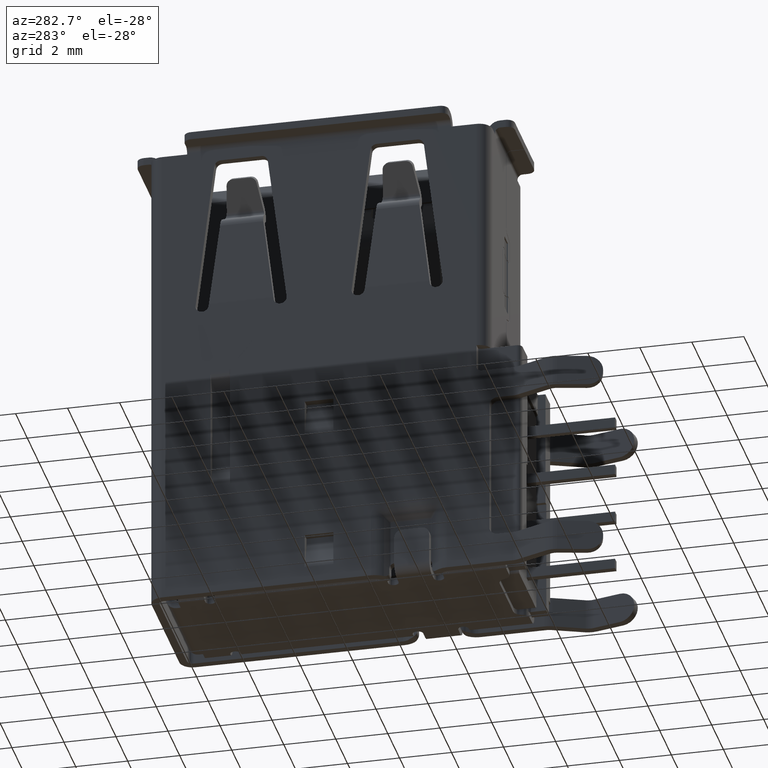
[diagram: clean part render]
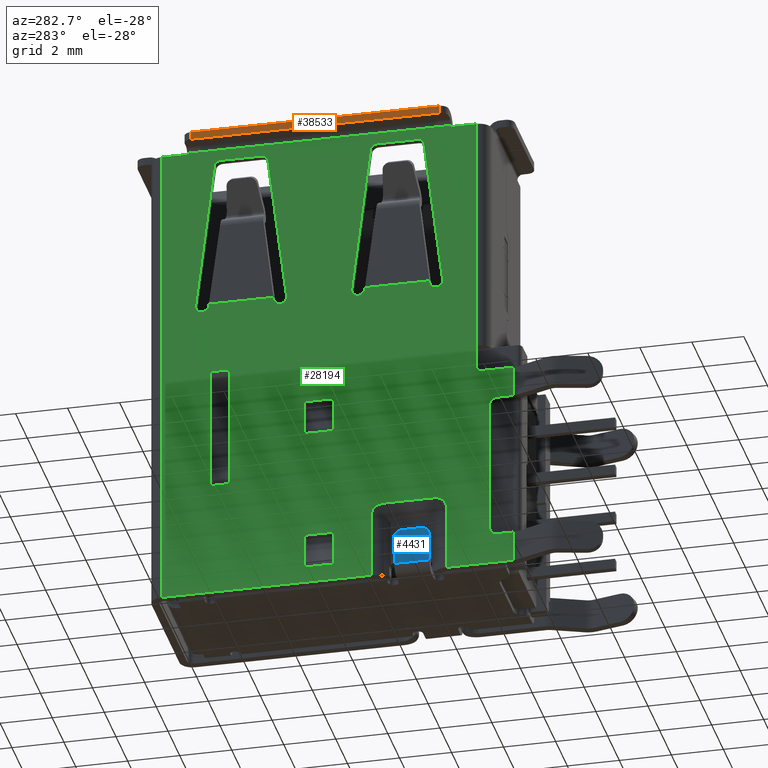
[diagram: same view with three faces highlighted in distinct colors, each labeled with its STEP entity id]
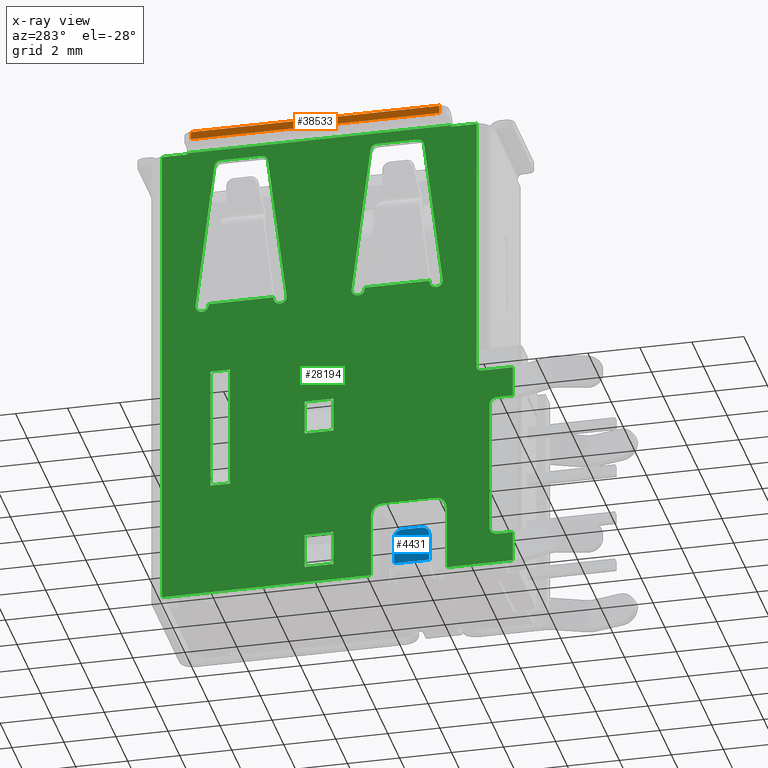
[diagram: x-ray of the same camera — body ghosted, the three highlighted faces saturated]
A machine part, auxiliary view with three faces highlighted in distinct colors.
The next image is the same camera in x-ray (body ghosted, the three faces saturated) — at least one of them is partly hidden behind the body in this view.
Their STEP definitions:

[orange] entity #38533 — the highlighted planar face has unit normal (1, 0, -0).
#261 = LINE ( 'NONE', #18255, #5900 ) ;
#284 = ORIENTED_EDGE ( 'NONE', *, *, #10435, .F. ) ;
#3670 = CARTESIAN_POINT ( 'NONE',  ( -19.10000000000000142, 0.0000000000000000000, -6.419999999999999929 ) ) ;
#4571 = CARTESIAN_POINT ( 'NONE',  ( -18.95000000002000107, 4.775000000099375974, -6.419999999999999929 ) ) ;
#5900 = VECTOR ( 'NONE', #11056, 1000.000000000000000 ) ;
#6127 = ORIENTED_EDGE ( 'NONE', *, *, #21865, .F. ) ;
#7272 = ORIENTED_EDGE ( 'NONE', *, *, #26380, .F. ) ;
#8873 = CARTESIAN_POINT ( 'NONE',  ( -19.25000000000000000, 4.775000000000000355, -6.419999999999999929 ) ) ;
#10435 = EDGE_CURVE ( 'NONE', #14382, #13663, #24665, .T. ) ;
#10683 = CARTESIAN_POINT ( 'NONE',  ( -19.25000000000000000, 0.0000000000000000000, -6.419999999999999929 ) ) ;
#11056 = DIRECTION ( 'NONE',  ( 1.000000000000000000, 0.0000000000000000000, -0.0000000000000000000 ) ) ;
#13663 = VERTEX_POINT ( 'NONE', #4571 ) ;
#14382 = VERTEX_POINT ( 'NONE', #28719 ) ;
#14465 = FACE_OUTER_BOUND ( 'NONE', #22407, .T. ) ;
#16125 = AXIS2_PLACEMENT_3D ( 'NONE', #3670, #46402, #46642 ) ;
#16319 = LINE ( 'NONE', #45350, #17077 ) ;
#17077 = VECTOR ( 'NONE', #34336, 1000.000000000000000 ) ;
#18255 = CARTESIAN_POINT ( 'NONE',  ( -19.10000000000000142, -4.775000000416500079, -6.419999999999999929 ) ) ;
#18910 = DIRECTION ( 'NONE',  ( -0.0000000000000000000, 1.000000000000000000, 0.0000000000000000000 ) ) ;
#19651 = VERTEX_POINT ( 'NONE', #8873 ) ;
#21042 = VECTOR ( 'NONE', #44008, 1000.000000000000000 ) ;
#21865 = EDGE_CURVE ( 'NONE', #24597, #14382, #261, .T. ) ;
#22407 = EDGE_LOOP ( 'NONE', ( #284, #6127, #37545, #7272 ) ) ;
#24597 = VERTEX_POINT ( 'NONE', #43838 ) ;
#24665 = LINE ( 'NONE', #26337, #26357 ) ;
#26337 = CARTESIAN_POINT ( 'NONE',  ( -18.94999999999999929, 0.0000000000000000000, -6.419999999999999929 ) ) ;
#26357 = VECTOR ( 'NONE', #18910, 1000.000000000000000 ) ;
#26380 = EDGE_CURVE ( 'NONE', #13663, #19651, #16319, .T. ) ;
#28362 = EDGE_CURVE ( 'NONE', #24597, #19651, #46926, .T. ) ;
#28719 = CARTESIAN_POINT ( 'NONE',  ( -18.94999999999999929, -4.775000000312374482, -6.419999999999999929 ) ) ;
#29102 = PLANE ( 'NONE',  #16125 ) ;
#34336 = DIRECTION ( 'NONE',  ( -1.000000000000000000, -0.0000000000000000000, -0.0000000000000000000 ) ) ;
#37545 = ORIENTED_EDGE ( 'NONE', *, *, #28362, .T. ) ;
#38533 = ADVANCED_FACE ( 'NONE', ( #14465 ), #29102, .F. ) ;
#43838 = CARTESIAN_POINT ( 'NONE',  ( -19.25000000000000000, -4.775000000208249773, -6.419999999999999929 ) ) ;
#44008 = DIRECTION ( 'NONE',  ( 0.0000000000000000000, 1.000000000000000000, 0.0000000000000000000 ) ) ;
#45350 = CARTESIAN_POINT ( 'NONE',  ( -19.28378473656000125, 4.775000000000000355, -6.419999999999999929 ) ) ;
#46402 = DIRECTION ( 'NONE',  ( 0.0000000000000000000, 0.0000000000000000000, 1.000000000000000000 ) ) ;
#46642 = DIRECTION ( 'NONE',  ( 1.000000000000000000, 0.0000000000000000000, -0.0000000000000000000 ) ) ;
#46926 = LINE ( 'NONE', #10683, #21042 ) ;

[blue] entity #4431 — the highlighted planar face has unit normal (1, 0, -0).
#312 = EDGE_CURVE ( 'NONE', #39057, #9830, #18126, .T. ) ;
#522 = CARTESIAN_POINT ( 'NONE',  ( -0.7500000000001001421, -4.235000000000000320, -5.720000000000001528 ) ) ;
#849 = VERTEX_POINT ( 'NONE', #19564 ) ;
#1146 = VECTOR ( 'NONE', #4213, 1000.000000000000000 ) ;
#1430 = PLANE ( 'NONE',  #24405 ) ;
#2639 = CARTESIAN_POINT ( 'NONE',  ( -1.800000000000000044, -3.935000000043499924, -5.720000000000001528 ) ) ;
#2699 = CARTESIAN_POINT ( 'NONE',  ( -1.578539816370161386, -2.885000000017410304, -5.720000000000002416 ) ) ;
#4213 = DIRECTION ( 'NONE',  ( -1.000000000000000000, -0.0000000000000000000, 0.0000000000000000000 ) ) ;
#4431 = ADVANCED_FACE ( 'NONE', ( #19669 ), #1430, .F. ) ;
#4559 = CARTESIAN_POINT ( 'NONE',  ( -1.100000000000000089, -3.560000000000000053, -5.720000000000001528 ) ) ;
#5572 = ORIENTED_EDGE ( 'NONE', *, *, #16484, .F. ) ;
#6391 = EDGE_CURVE ( 'NONE', #39420, #39057, #24331, .T. ) ;
#7250 = VECTOR ( 'NONE', #20984, 1000.000000000000000 ) ;
#7399 = CARTESIAN_POINT ( 'NONE',  ( -1.800000000000000044, -3.184999999850000485, -5.720000000000001528 ) ) ;
#7918 = CARTESIAN_POINT ( 'NONE',  ( -0.4000000000833499048, -2.884999999999999787, -5.720000000000001528 ) ) ;
#8254 = B_SPLINE_CURVE_WITH_KNOTS ( 'NONE', 3,
 ( #43212, #2699, #28352, #20909, #35568, #35326 ),
 .UNSPECIFIED., .F., .F.,
 ( 4, 2, 4 ),
 ( 0.0000000000000000000, 0.5000000000000000000, 1.000000000000000000 ),
 .UNSPECIFIED. ) ;
#9552 = DIRECTION ( 'NONE',  ( 0.0000000000000000000, 1.000000000000000000, 0.0000000000000000000 ) ) ;
#9830 = VERTEX_POINT ( 'NONE', #20656 ) ;
#10704 = CARTESIAN_POINT ( 'NONE',  ( -0.7500000000001001421, -2.884999999999999787, -5.720000000000001528 ) ) ;
#10725 = ORIENTED_EDGE ( 'NONE', *, *, #312, .F. ) ;
#11525 = EDGE_CURVE ( 'NONE', #19678, #11719, #37080, .T. ) ;
#11719 = VERTEX_POINT ( 'NONE', #16182 ) ;
#13444 = EDGE_CURVE ( 'NONE', #11719, #39420, #8254, .T. ) ;
#15464 = VECTOR ( 'NONE', #45947, 1000.000000000000000 ) ;
#16071 = ORIENTED_EDGE ( 'NONE', *, *, #13444, .F. ) ;
#16182 = CARTESIAN_POINT ( 'NONE',  ( -1.500000000066499917, -2.885000000000000231, -5.720000000000001528 ) ) ;
#16484 = EDGE_CURVE ( 'NONE', #849, #19678, #38809, .T. ) ;
#17149 = CARTESIAN_POINT ( 'NONE',  ( -1.800000000000000266, -3.560000000000000053, -5.720000000000001528 ) ) ;
#17266 = CARTESIAN_POINT ( 'NONE',  ( -1.767668071073049019, -4.091595997638415305, -5.720000000000001528 ) ) ;
#18126 = B_SPLINE_CURVE_WITH_KNOTS ( 'NONE', 3,
 ( #2639, #32378, #17266, #21328, #39559, #42921 ),
 .UNSPECIFIED., .F., .F.,
 ( 4, 2, 4 ),
 ( 0.0000000000000000000, 0.5000000000000000000, 1.000000000000000000 ),
 .UNSPECIFIED. ) ;
#19197 = DIRECTION ( 'NONE',  ( 1.000000000000000000, 0.0000000000000000000, -0.0000000000000000000 ) ) ;
#19564 = CARTESIAN_POINT ( 'NONE',  ( -0.4000000000833498492, -4.235000000958500266, -5.720000000000000639 ) ) ;
#19669 = FACE_OUTER_BOUND ( 'NONE', #39025, .T. ) ;
#19678 = VERTEX_POINT ( 'NONE', #7918 ) ;
#20656 = CARTESIAN_POINT ( 'NONE',  ( -1.500000000046000093, -4.235000000000000320, -5.720000000000001528 ) ) ;
#20909 = CARTESIAN_POINT ( 'NONE',  ( -1.767668071035635613, -3.028404002308250575, -5.720000000000000639 ) ) ;
#20984 = DIRECTION ( 'NONE',  ( -1.000000000000000000, -0.0000000000000000000, 0.0000000000000000000 ) ) ;
#21328 = CARTESIAN_POINT ( 'NONE',  ( -1.656595997640647466, -4.202668071071743228, -5.720000000000000639 ) ) ;
#21600 = ORIENTED_EDGE ( 'NONE', *, *, #11525, .F. ) ;
#21827 = CARTESIAN_POINT ( 'NONE',  ( -1.800000000000000044, -3.935000000043499924, -5.720000000000001528 ) ) ;
#24127 = ORIENTED_EDGE ( 'NONE', *, *, #29960, .T. ) ;
#24331 = LINE ( 'NONE', #17149, #15464 ) ;
#24405 = AXIS2_PLACEMENT_3D ( 'NONE', #4559, #45331, #19197 ) ;
#28352 = CARTESIAN_POINT ( 'NONE',  ( -1.656595997617249072, -2.917331928920779305, -5.720000000000001528 ) ) ;
#29960 = EDGE_CURVE ( 'NONE', #849, #9830, #44181, .T. ) ;
#32378 = CARTESIAN_POINT ( 'NONE',  ( -1.799999999988611599, -4.013539816368328239, -5.720000000000002416 ) ) ;
#35326 = CARTESIAN_POINT ( 'NONE',  ( -1.800000000000000044, -3.184999999850000485, -5.720000000000001528 ) ) ;
#35568 = CARTESIAN_POINT ( 'NONE',  ( -1.799999999960729902, -3.106460183546339238, -5.720000000000001528 ) ) ;
#35977 = ORIENTED_EDGE ( 'NONE', *, *, #6391, .F. ) ;
#37080 = LINE ( 'NONE', #10704, #1146 ) ;
#38809 = LINE ( 'NONE', #46015, #42394 ) ;
#39025 = EDGE_LOOP ( 'NONE', ( #5572, #24127, #10725, #35977, #16071, #21600 ) ) ;
#39057 = VERTEX_POINT ( 'NONE', #21827 ) ;
#39420 = VERTEX_POINT ( 'NONE', #7399 ) ;
#39559 = CARTESIAN_POINT ( 'NONE',  ( -1.578539816370828408, -4.234999999987956620, -5.720000000000001528 ) ) ;
#42394 = VECTOR ( 'NONE', #9552, 1000.000000000000000 ) ;
#42921 = CARTESIAN_POINT ( 'NONE',  ( -1.500000000046000093, -4.235000000000000320, -5.720000000000001528 ) ) ;
#43212 = CARTESIAN_POINT ( 'NONE',  ( -1.500000000066499917, -2.885000000000000231, -5.720000000000001528 ) ) ;
#44181 = LINE ( 'NONE', #522, #7250 ) ;
#45331 = DIRECTION ( 'NONE',  ( 0.0000000000000000000, 0.0000000000000000000, 1.000000000000000000 ) ) ;
#45947 = DIRECTION ( 'NONE',  ( 0.0000000000000000000, -1.000000000000000000, -0.0000000000000000000 ) ) ;
#46015 = CARTESIAN_POINT ( 'NONE',  ( -0.4000000000833498492, -4.268784736557999615, -5.720000000000000639 ) ) ;

[green] entity #28194 — the highlighted planar face has unit normal (1, 0, -0).
#19 = LINE ( 'NONE', #44154, #46064 ) ;
#164 = VECTOR ( 'NONE', #29447, 1000.000000000000000 ) ;
#222 = VECTOR ( 'NONE', #6115, 999.9999999999998863 ) ;
#418 = ORIENTED_EDGE ( 'NONE', *, *, #6963, .F. ) ;
#419 = CIRCLE ( 'NONE', #32587, 0.2500000000000002220 ) ;
#461 = LINE ( 'NONE', #21809, #44465 ) ;
#603 = LINE ( 'NONE', #29870, #5876 ) ;
#652 = CARTESIAN_POINT ( 'NONE',  ( -9.375000000000000000, -0.6999999999999999556, -5.720000000000001528 ) ) ;
#671 = DIRECTION ( 'NONE',  ( 0.0000000000000000000, 1.000000000000000000, 0.0000000000000000000 ) ) ;
#879 = CARTESIAN_POINT ( 'NONE',  ( -2.626240485379858658, -4.891763590205164824, -5.720000000834925658 ) ) ;
#1018 = VERTEX_POINT ( 'NONE', #35809 ) ;
#1115 = CARTESIAN_POINT ( 'NONE',  ( -3.009764428509988488, -4.467805467669109021, -5.719996999306492746 ) ) ;
#1120 = EDGE_CURVE ( 'NONE', #2190, #19077, #22090, .T. ) ;
#1123 = ORIENTED_EDGE ( 'NONE', *, *, #3302, .T. ) ;
#1134 = AXIS2_PLACEMENT_3D ( 'NONE', #8212, #4377, #19016 ) ;
#1177 = AXIS2_PLACEMENT_3D ( 'NONE', #24823, #10681, #39462 ) ;
#1306 = DIRECTION ( 'NONE',  ( 0.0000000000000000000, 0.0000000000000000000, 1.000000000000000000 ) ) ;
#1353 = CARTESIAN_POINT ( 'NONE',  ( -2.829221039422565198, -4.806923902581163865, -5.720000212633206793 ) ) ;
#1453 = EDGE_CURVE ( 'NONE', #20912, #46891, #3349, .T. ) ;
#1641 = CARTESIAN_POINT ( 'NONE',  ( -12.16941621183335620, -4.251877788020988369, -5.720000000000001528 ) ) ;
#1799 = VECTOR ( 'NONE', #16535, 1000.000000000000000 ) ;
#1808 = VECTOR ( 'NONE', #22722, 1000.000000000000000 ) ;
#1889 = ORIENTED_EDGE ( 'NONE', *, *, #19966, .T. ) ;
#1898 = DIRECTION ( 'NONE',  ( 0.0000000000000000000, -1.000000000000000000, -0.0000000000000000000 ) ) ;
#1902 = CARTESIAN_POINT ( 'NONE',  ( -12.24558918872945945, -0.6999999999999999556, -5.720000000000001528 ) ) ;
#1920 = ORIENTED_EDGE ( 'NONE', *, *, #9659, .F. ) ;
#1953 = CARTESIAN_POINT ( 'NONE',  ( -7.670000000173582855, -0.5500000001875000599, -5.720000000000000639 ) ) ;
#2158 = CARTESIAN_POINT ( 'NONE',  ( -15.15558378800000305, -1.612416164999999957, -5.720000000000001528 ) ) ;
#2190 = VERTEX_POINT ( 'NONE', #42337 ) ;
#2311 = DIRECTION ( 'NONE',  ( 0.0000000000000000000, 1.000000000000000000, 0.0000000000000000000 ) ) ;
#2486 = EDGE_CURVE ( 'NONE', #38076, #24862, #4317, .T. ) ;
#2661 = CARTESIAN_POINT ( 'NONE',  ( -11.94999999999999929, 1.500000000000000000, -5.720000000000001528 ) ) ;
#2762 = CARTESIAN_POINT ( 'NONE',  ( -9.375000000000000000, -0.5500000001875000599, -5.720000000000001528 ) ) ;
#2897 = DIRECTION ( 'NONE',  ( 0.0000000000000000000, -1.000000000000000000, -0.0000000000000000000 ) ) ;
#2922 = VERTEX_POINT ( 'NONE', #31870 ) ;
#3038 = CARTESIAN_POINT ( 'NONE',  ( -9.375000000000000000, -4.905294046727499691, -5.720000000000001528 ) ) ;
#3224 = LINE ( 'NONE', #2762, #43028 ) ;
#3274 = EDGE_CURVE ( 'NONE', #10061, #24294, #27367, .T. ) ;
#3302 = EDGE_CURVE ( 'NONE', #5318, #22931, #21457, .T. ) ;
#3313 = CARTESIAN_POINT ( 'NONE',  ( -6.699999999473999601, -6.550000000000000711, -5.719999999967501303 ) ) ;
#3349 = LINE ( 'NONE', #43631, #18813 ) ;
#3404 = CARTESIAN_POINT ( 'NONE',  ( -9.375000000000000000, -6.049999999296000297, -5.720000000000001528 ) ) ;
#3433 = ORIENTED_EDGE ( 'NONE', *, *, #24546, .T. ) ;
#3434 = CARTESIAN_POINT ( 'NONE',  ( -12.24558918872545554, 1.757511367341593411, -5.720000000022722020 ) ) ;
#3555 = CARTESIAN_POINT ( 'NONE',  ( -18.30000000000000071, -2.221076753500000223, -5.720000000000001528 ) ) ;
#3710 = LINE ( 'NONE', #21935, #37030 ) ;
#3783 = ORIENTED_EDGE ( 'NONE', *, *, #10156, .F. ) ;
#3855 = LINE ( 'NONE', #43669, #27335 ) ;
#3870 = CARTESIAN_POINT ( 'NONE',  ( -6.700000000000000178, -6.850000000000001421, -5.720000000000001528 ) ) ;
#4023 = LINE ( 'NONE', #43842, #46554 ) ;
#4025 = CARTESIAN_POINT ( 'NONE',  ( -7.000000000000000000, -6.850000000000001421, -5.719999999967501303 ) ) ;
#4069 = CARTESIAN_POINT ( 'NONE',  ( -12.24558918873849223, 4.242488632059778553, -5.720000000078153235 ) ) ;
#4219 = VERTEX_POINT ( 'NONE', #31783 ) ;
#4247 = FACE_BOUND ( 'NONE', #25282, .T. ) ;
#4280 = EDGE_CURVE ( 'NONE', #43104, #34623, #10819, .T. ) ;
#4317 = CIRCLE ( 'NONE', #5062, 0.2500000000000002220 ) ;
#4377 = DIRECTION ( 'NONE',  ( 0.0000000000000000000, 0.0000000000000000000, 1.000000000000000000 ) ) ;
#4436 = VERTEX_POINT ( 'NONE', #28064 ) ;
#4596 = CARTESIAN_POINT ( 'NONE',  ( -8.199999999999999289, -8.307840758848000107, -5.719999999902499965 ) ) ;
#4719 = CARTESIAN_POINT ( 'NONE',  ( -9.367782202312000095, -0.6999999999999999556, -5.720000000000001528 ) ) ;
#4803 = DIRECTION ( 'NONE',  ( 1.000000000000000000, 0.0000000000000000000, -0.0000000000000000000 ) ) ;
#4886 = LINE ( 'NONE', #19065, #18761 ) ;
#5043 = DIRECTION ( 'NONE',  ( -1.000000000000000000, 0.0000000000000000000, 0.0000000000000000000 ) ) ;
#5062 = AXIS2_PLACEMENT_3D ( 'NONE', #27901, #5825, #31266 ) ;
#5087 = EDGE_LOOP ( 'NONE', ( #37424, #43020, #20195, #38982 ) ) ;
#5108 = EDGE_CURVE ( 'NONE', #10061, #18187, #26279, .T. ) ;
#5222 = EDGE_LOOP ( 'NONE', ( #20586, #43686, #41748, #1123, #5308, #39433, #43015, #14129, #7515, #17402, #418, #19853, #9224, #15834, #33690, #33089, #26714, #39148, #9817, #37219, #1920, #45807, #22236, #20016 ) ) ;
#5308 = ORIENTED_EDGE ( 'NONE', *, *, #40392, .T. ) ;
#5318 = VERTEX_POINT ( 'NONE', #21675 ) ;
#5352 = ORIENTED_EDGE ( 'NONE', *, *, #12327, .T. ) ;
#5408 = DIRECTION ( 'NONE',  ( 0.0000000000000000000, 0.0000000000000000000, 1.000000000000000000 ) ) ;
#5531 = LINE ( 'NONE', #24460, #30870 ) ;
#5655 = VERTEX_POINT ( 'NONE', #45162 ) ;
#5741 = CARTESIAN_POINT ( 'NONE',  ( -12.20750270050000275, 4.247183210000000209, -5.720000000000001528 ) ) ;
#5825 = DIRECTION ( 'NONE',  ( 0.0000000000000000000, 0.0000000000000000000, 1.000000000000000000 ) ) ;
#5876 = VECTOR ( 'NONE', #26263, 1000.000000000000000 ) ;
#5877 = CARTESIAN_POINT ( 'NONE',  ( -18.08058378786894949, -1.972954541983901189, -5.720000000000001528 ) ) ;
#5917 = VERTEX_POINT ( 'NONE', #40557 ) ;
#6002 = ORIENTED_EDGE ( 'NONE', *, *, #8428, .F. ) ;
#6115 = DIRECTION ( 'NONE',  ( -0.9924888467548955706, -0.1223351505787994981, 0.0000000000000000000 ) ) ;
#6253 = DIRECTION ( 'NONE',  ( 0.0000000000000000000, 1.000000000000000000, 0.0000000000000000000 ) ) ;
#6268 = DIRECTION ( 'NONE',  ( 1.000000000000000000, 0.0000000000000000000, 0.0000000000000000000 ) ) ;
#6345 = CIRCLE ( 'NONE', #33170, 0.2500000000000002220 ) ;
#6437 = EDGE_CURVE ( 'NONE', #32194, #36425, #3224, .T. ) ;
#6481 = DIRECTION ( 'NONE',  ( -1.000000000000000000, -0.0000000000000000000, 0.0000000000000000000 ) ) ;
#6518 = CIRCLE ( 'NONE', #44798, 0.2000000000000005107 ) ;
#6581 = DIRECTION ( 'NONE',  ( 0.0000000000000000000, 1.000000000000000000, 0.0000000000000000000 ) ) ;
#6842 = DIRECTION ( 'NONE',  ( 0.0000000000000000000, 0.0000000000000000000, 1.000000000000000000 ) ) ;
#6963 = EDGE_CURVE ( 'NONE', #2922, #26019, #36277, .T. ) ;
#7112 = CARTESIAN_POINT ( 'NONE',  ( -18.75000000001000089, -5.075000000000001066, -5.720000000016667308 ) ) ;
#7157 = CARTESIAN_POINT ( 'NONE',  ( -2.983724222421088257, -2.327005750426666353, -5.719999272939166879 ) ) ;
#7277 = VERTEX_POINT ( 'NONE', #39334 ) ;
#7395 = ORIENTED_EDGE ( 'NONE', *, *, #15404, .T. ) ;
#7410 = VECTOR ( 'NONE', #40181, 1000.000000000000000 ) ;
#7423 = LINE ( 'NONE', #26112, #42846 ) ;
#7515 = ORIENTED_EDGE ( 'NONE', *, *, #19309, .T. ) ;
#7544 = ORIENTED_EDGE ( 'NONE', *, *, #19260, .T. ) ;
#7631 = CARTESIAN_POINT ( 'NONE',  ( -2.649387892398371136, -2.009795545949948359, -5.720000330630352181 ) ) ;
#7712 = LINE ( 'NONE', #14204, #46034 ) ;
#7842 = CIRCLE ( 'NONE', #9385, 0.2500000000000002220 ) ;
#7848 = CARTESIAN_POINT ( 'NONE',  ( -18.69999999947999925, 6.050000000366249964, -5.720000000075000202 ) ) ;
#7851 = CARTESIAN_POINT ( 'NONE',  ( -2.891334042224050105, -4.744755123476501524, -5.720000290304047219 ) ) ;
#7872 = LINE ( 'NONE', #33560, #10983 ) ;
#7885 = DIRECTION ( 'NONE',  ( 1.000000000000000000, 0.0000000000000000000, 0.0000000000000000000 ) ) ;
#8117 = B_SPLINE_CURVE_WITH_KNOTS ( 'NONE', 3,
 ( #26071, #11924, #44308, #879, #40701, #34233, #23405, #23173, #1353, #7851, #30624, #34467, #45251, #38056, #22464, #15045, #1115, #15274 ),
 .UNSPECIFIED., .F., .F.,
 ( 4, 2, 2, 2, 2, 2, 2, 2, 4 ),
 ( 0.0000000000000000000, 0.1250000000000023037, 0.1875000000000024980, 0.2500000000000027200, 0.5000000000000021094, 0.6250000000000017764, 0.6875000000000006661, 0.7499999999999995559, 1.000000000000000000 ),
 .UNSPECIFIED. ) ;
#8212 = CARTESIAN_POINT ( 'NONE',  ( -18.05000000000000071, -3.778923246000000180, -5.720000000000001528 ) ) ;
#8249 = LINE ( 'NONE', #26709, #45192 ) ;
#8302 = ORIENTED_EDGE ( 'NONE', *, *, #20997, .T. ) ;
#8337 = CARTESIAN_POINT ( 'NONE',  ( 0.0000000000000000000, -7.418118965827999567, -5.720000000097500426 ) ) ;
#8428 = EDGE_CURVE ( 'NONE', #43834, #9191, #29101, .T. ) ;
#8514 = VERTEX_POINT ( 'NONE', #37469 ) ;
#8645 = DIRECTION ( 'NONE',  ( -0.0000000000000000000, -0.0000000000000000000, 1.000000000000000000 ) ) ;
#8837 = DIRECTION ( 'NONE',  ( 0.0000000000000000000, 0.0000000000000000000, 1.000000000000000000 ) ) ;
#9004 = DIRECTION ( 'NONE',  ( -0.0000000000000000000, 1.000000000000000000, 0.0000000000000000000 ) ) ;
#9105 = LINE ( 'NONE', #31410, #25563 ) ;
#9119 = VECTOR ( 'NONE', #40069, 1000.000000000000000 ) ;
#9128 = DIRECTION ( 'NONE',  ( 1.000000000000000000, 0.0000000000000000000, 0.0000000000000000000 ) ) ;
#9178 = VERTEX_POINT ( 'NONE', #3555 ) ;
#9191 = VERTEX_POINT ( 'NONE', #46760 ) ;
#9224 = ORIENTED_EDGE ( 'NONE', *, *, #1453, .T. ) ;
#9385 = AXIS2_PLACEMENT_3D ( 'NONE', #28207, #31571, #23641 ) ;
#9609 = VECTOR ( 'NONE', #17480, 999.9999999999998863 ) ;
#9659 = EDGE_CURVE ( 'NONE', #36642, #5917, #38962, .T. ) ;
#9817 = ORIENTED_EDGE ( 'NONE', *, *, #15846, .F. ) ;
#9831 = CARTESIAN_POINT ( 'NONE',  ( -18.69999999953778058, -5.074999999852001231, -5.720000000011111752 ) ) ;
#9858 = EDGE_LOOP ( 'NONE', ( #6002, #37073, #31763, #22665 ) ) ;
#10061 = VERTEX_POINT ( 'NONE', #23005 ) ;
#10156 = EDGE_CURVE ( 'NONE', #37979, #19077, #45566, .T. ) ;
#10224 = EDGE_CURVE ( 'NONE', #39792, #20043, #17145, .T. ) ;
#10368 = CIRCLE ( 'NONE', #1177, 0.2500000000000002220 ) ;
#10375 = DIRECTION ( 'NONE',  ( 1.000000000000000000, 0.0000000000000000000, -0.0000000000000000000 ) ) ;
#10429 = CARTESIAN_POINT ( 'NONE',  ( -12.20750270050000275, -1.752816790000000013, -5.720000000000001528 ) ) ;
#10681 = DIRECTION ( 'NONE',  ( 0.0000000000000000000, 0.0000000000000000000, 1.000000000000000000 ) ) ;
#10748 = CIRCLE ( 'NONE', #29141, 0.2999999999999999334 ) ;
#10819 = LINE ( 'NONE', #25436, #9119 ) ;
#10851 = VECTOR ( 'NONE', #6253, 1000.000000000000000 ) ;
#10983 = VECTOR ( 'NONE', #671, 1000.000000000000000 ) ;
#10990 = CARTESIAN_POINT ( 'NONE',  ( -3.010026560390872685, -2.476859280948267017, -5.719998152017241821 ) ) ;
#11012 = ORIENTED_EDGE ( 'NONE', *, *, #42704, .T. ) ;
#11220 = VERTEX_POINT ( 'NONE', #4025 ) ;
#11271 = ORIENTED_EDGE ( 'NONE', *, *, #26174, .T. ) ;
#11462 = CARTESIAN_POINT ( 'NONE',  ( -2.483490800518292740, -1.994706104720297635, -5.719999836529260584 ) ) ;
#11633 = CARTESIAN_POINT ( 'NONE',  ( -4.532217800088499615, 3.425000000000000711, -5.719999999983874872 ) ) ;
#11830 = CARTESIAN_POINT ( 'NONE',  ( -18.08058378788899745, 1.972954542163880554, -5.720000000000001528 ) ) ;
#11893 = CARTESIAN_POINT ( 'NONE',  ( -15.15558378800000305, -4.387583835000000043, -5.720000000000001528 ) ) ;
#11924 = CARTESIAN_POINT ( 'NONE',  ( -2.528142999107383382, -4.905025498295765729, -5.719997887356934818 ) ) ;
#12041 = VERTEX_POINT ( 'NONE', #11830 ) ;
#12327 = EDGE_CURVE ( 'NONE', #27770, #38963, #19, .T. ) ;
#12424 = EDGE_LOOP ( 'NONE', ( #14033, #7395, #8302, #33307, #13376, #7544, #25811, #20368, #46228, #5352, #28016, #17738 ) ) ;
#12657 = VECTOR ( 'NONE', #29570, 1000.000000000000000 ) ;
#13297 = EDGE_CURVE ( 'NONE', #21392, #9191, #41324, .T. ) ;
#13376 = ORIENTED_EDGE ( 'NONE', *, *, #41840, .F. ) ;
#13416 = DIRECTION ( 'NONE',  ( 1.000000000000000000, 0.0000000000000000000, 0.0000000000000000000 ) ) ;
#13474 = CARTESIAN_POINT ( 'NONE',  ( -18.30000000000000071, 2.221076754157999655, -5.720000000000001528 ) ) ;
#13551 = CARTESIAN_POINT ( 'NONE',  ( -3.010293977912276819, -0.6999999999999999556, -5.720000000000001528 ) ) ;
#13664 = DIRECTION ( 'NONE',  ( -0.9924888466487681304, -0.1223351514397961054, 0.0000000000000000000 ) ) ;
#13936 = CARTESIAN_POINT ( 'NONE',  ( -8.400000000000000355, -6.250000000000000000, -5.719999999869999741 ) ) ;
#14033 = ORIENTED_EDGE ( 'NONE', *, *, #10224, .T. ) ;
#14083 = EDGE_CURVE ( 'NONE', #41862, #2190, #41505, .T. ) ;
#14129 = ORIENTED_EDGE ( 'NONE', *, *, #29020, .T. ) ;
#14204 = CARTESIAN_POINT ( 'NONE',  ( -15.15558378800000305, 1.612416164999999957, -5.720000000000001528 ) ) ;
#14322 = DIRECTION ( 'NONE',  ( 0.0000000000000000000, -1.000000000000000000, -0.0000000000000000000 ) ) ;
#14352 = CARTESIAN_POINT ( 'NONE',  ( -2.770776561456284259, -2.059702430755427915, -5.720000100243324503 ) ) ;
#14643 = LINE ( 'NONE', #22785, #35114 ) ;
#14661 = CARTESIAN_POINT ( 'NONE',  ( -12.20750270050000275, 1.752816790000000013, -5.720000000000001528 ) ) ;
#14799 = CARTESIAN_POINT ( 'NONE',  ( -9.375000000000000000, -7.449999999831999453, -5.720000000000001528 ) ) ;
#14819 = CARTESIAN_POINT ( 'NONE',  ( -2.992814823740111319, -2.360830211522695343, -5.719999509023446116 ) ) ;
#14924 = CARTESIAN_POINT ( 'NONE',  ( -9.375000000000000000, -0.5500000001875000599, -5.720000000000001528 ) ) ;
#15045 = CARTESIAN_POINT ( 'NONE',  ( -2.995209144552261282, -4.544379018737459752, -5.720000439531603753 ) ) ;
#15053 = CARTESIAN_POINT ( 'NONE',  ( -1.199999999999999956, -6.850000000510250153, -5.719999999902499965 ) ) ;
#15140 = VERTEX_POINT ( 'NONE', #5877 ) ;
#15144 = DIRECTION ( 'NONE',  ( -1.000000000000000000, 0.0000000000000000000, 0.0000000000000000000 ) ) ;
#15195 = DIRECTION ( 'NONE',  ( 0.0000000000000000000, 0.0000000000000000000, 1.000000000000000000 ) ) ;
#15214 = EDGE_CURVE ( 'NONE', #39792, #24777, #38969, .T. ) ;
#15274 = CARTESIAN_POINT ( 'NONE',  ( -3.010294005147692964, -4.378490242360430607, -5.719999885261334960 ) ) ;
#15365 = DIRECTION ( 'NONE',  ( -0.9924888467548955706, 0.1223351505787994981, 0.0000000000000000000 ) ) ;
#15378 = CARTESIAN_POINT ( 'NONE',  ( -4.532217799793900603, 4.170819803917606983, -5.715819803851568182 ) ) ;
#15404 = EDGE_CURVE ( 'NONE', #20043, #46358, #6345, .T. ) ;
#15649 = VECTOR ( 'NONE', #26260, 1000.000000000000000 ) ;
#15749 = PLANE ( 'NONE',  #20299 ) ;
#15834 = ORIENTED_EDGE ( 'NONE', *, *, #44160, .F. ) ;
#15846 = EDGE_CURVE ( 'NONE', #20170, #25134, #18264, .T. ) ;
#15896 = CARTESIAN_POINT ( 'NONE',  ( -6.319016280999999680, 0.5500000000000000444, -5.719999999982444017 ) ) ;
#16483 = CARTESIAN_POINT ( 'NONE',  ( -6.319016281421500736, 0.5500000000000000444, -5.719999999991222772 ) ) ;
#16535 = DIRECTION ( 'NONE',  ( 0.0000000000000000000, -1.000000000000000000, -0.0000000000000000000 ) ) ;
#16598 = EDGE_CURVE ( 'NONE', #43719, #32194, #42869, .T. ) ;
#17145 = CIRCLE ( 'NONE', #47027, 0.2500000000000002220 ) ;
#17231 = EDGE_CURVE ( 'NONE', #21392, #31398, #5531, .T. ) ;
#17257 = LINE ( 'NONE', #2158, #38012 ) ;
#17373 = ORIENTED_EDGE ( 'NONE', *, *, #34961, .T. ) ;
#17402 = ORIENTED_EDGE ( 'NONE', *, *, #25363, .T. ) ;
#17480 = DIRECTION ( 'NONE',  ( -0.9924888467548955706, -0.1223351505787994981, 0.0000000000000000000 ) ) ;
#17666 = DIRECTION ( 'NONE',  ( -1.000000000000000000, -0.0000000000000000000, 0.0000000000000000000 ) ) ;
#17738 = ORIENTED_EDGE ( 'NONE', *, *, #15214, .F. ) ;
#17746 = DIRECTION ( 'NONE',  ( 0.0000000000000000000, -1.000000000000000000, -0.0000000000000000000 ) ) ;
#17867 = CARTESIAN_POINT ( 'NONE',  ( -12.19999999999999929, -4.500000000000001776, -5.720000000000001528 ) ) ;
#18022 = DIRECTION ( 'NONE',  ( -0.9924888467548955706, 0.1223351505787994981, 0.0000000000000000000 ) ) ;
#18070 = EDGE_CURVE ( 'NONE', #43719, #22987, #3710, .T. ) ;
#18096 = DIRECTION ( 'NONE',  ( -1.000000000000000000, -0.0000000000000000000, 0.0000000000000000000 ) ) ;
#18187 = VERTEX_POINT ( 'NONE', #29622 ) ;
#18264 = LINE ( 'NONE', #32907, #20168 ) ;
#18336 = DIRECTION ( 'NONE',  ( -1.000000000000000000, -0.0000000000000000000, 0.0000000000000000000 ) ) ;
#18418 = CARTESIAN_POINT ( 'NONE',  ( -2.825844646164011653, -2.093885686035750648, -5.719999761215622591 ) ) ;
#18465 = VECTOR ( 'NONE', #44935, 1000.000000000000000 ) ;
#18524 = LINE ( 'NONE', #14924, #26491 ) ;
#18607 = DIRECTION ( 'NONE',  ( -0.9924888466487681304, 0.1223351514397961054, 0.0000000000000000000 ) ) ;
#18656 = LINE ( 'NONE', #8337, #1808 ) ;
#18657 = CARTESIAN_POINT ( 'NONE',  ( -3.010293997049753756, -2.521509374996288688, -5.719999796443081763 ) ) ;
#18761 = VECTOR ( 'NONE', #26009, 1000.000000000000000 ) ;
#18789 = EDGE_CURVE ( 'NONE', #43307, #5655, #26015, .T. ) ;
#18813 = VECTOR ( 'NONE', #6481, 1000.000000000000000 ) ;
#18889 = FACE_BOUND ( 'NONE', #12424, .T. ) ;
#18938 = EDGE_CURVE ( 'NONE', #24294, #27770, #25613, .T. ) ;
#19016 = DIRECTION ( 'NONE',  ( 1.000000000000000000, 0.0000000000000000000, 0.0000000000000000000 ) ) ;
#19065 = CARTESIAN_POINT ( 'NONE',  ( -4.532217800856000345, -0.6999999999999999556, -5.720000000000001528 ) ) ;
#19077 = VERTEX_POINT ( 'NONE', #3434 ) ;
#19260 = EDGE_CURVE ( 'NONE', #8514, #18187, #21813, .T. ) ;
#19309 = EDGE_CURVE ( 'NONE', #1018, #44178, #6518, .T. ) ;
#19474 = CARTESIAN_POINT ( 'NONE',  ( -0.6490162814216243747, 0.5500000000000000444, -5.719999999995804885 ) ) ;
#19680 = EDGE_CURVE ( 'NONE', #23568, #37979, #20127, .T. ) ;
#19853 = ORIENTED_EDGE ( 'NONE', *, *, #32157, .T. ) ;
#19889 = VERTEX_POINT ( 'NONE', #32360 ) ;
#19966 = EDGE_CURVE ( 'NONE', #7277, #41862, #419, .T. ) ;
#20016 = ORIENTED_EDGE ( 'NONE', *, *, #44389, .F. ) ;
#20043 = VERTEX_POINT ( 'NONE', #42305 ) ;
#20127 = LINE ( 'NONE', #5741, #9609 ) ;
#20168 = VECTOR ( 'NONE', #4803, 1000.000000000000000 ) ;
#20170 = VERTEX_POINT ( 'NONE', #31772 ) ;
#20195 = ORIENTED_EDGE ( 'NONE', *, *, #18789, .F. ) ;
#20299 = AXIS2_PLACEMENT_3D ( 'NONE', #652, #30400, #29921 ) ;
#20368 = ORIENTED_EDGE ( 'NONE', *, *, #3274, .T. ) ;
#20486 = CARTESIAN_POINT ( 'NONE',  ( -12.16941621177538480, 4.251877788028134653, -5.720000000000001528 ) ) ;
#20586 = ORIENTED_EDGE ( 'NONE', *, *, #23235, .F. ) ;
#20912 = VERTEX_POINT ( 'NONE', #9831 ) ;
#20997 = EDGE_CURVE ( 'NONE', #46358, #15140, #17257, .T. ) ;
#21113 = CARTESIAN_POINT ( 'NONE',  ( -18.30000000000000071, -3.000000000000000000, -5.720000000000001528 ) ) ;
#21282 = CARTESIAN_POINT ( 'NONE',  ( -0.6490162818432488878, -0.6999999999999999556, -5.720000000000001528 ) ) ;
#21392 = VERTEX_POINT ( 'NONE', #16483 ) ;
#21457 = LINE ( 'NONE', #46686, #35056 ) ;
#21630 = EDGE_LOOP ( 'NONE', ( #11012, #28173, #3433, #17373, #26746, #11271, #35139, #1889, #38833, #41566, #3783, #43498 ) ) ;
#21665 = CARTESIAN_POINT ( 'NONE',  ( -12.23058378790402223, 4.748122211834322925, -5.720000000000001528 ) ) ;
#21675 = CARTESIAN_POINT ( 'NONE',  ( -1.500000000000000000, -6.550000000000000711, -5.719999999902499965 ) ) ;
#21749 = EDGE_CURVE ( 'NONE', #4219, #22155, #3855, .T. ) ;
#21809 = CARTESIAN_POINT ( 'NONE',  ( -12.24558918863470502, -0.6999999999999999556, -5.720000000000001528 ) ) ;
#21813 = CIRCLE ( 'NONE', #1134, 0.2500000000000002220 ) ;
#21885 = CARTESIAN_POINT ( 'NONE',  ( -7.669999999999999929, 0.0000000000000000000, -5.720000000000001528 ) ) ;
#21935 = CARTESIAN_POINT ( 'NONE',  ( -0.6490162809999999727, 0.5500000000000000444, -5.719999999991608242 ) ) ;
#22014 = CARTESIAN_POINT ( 'NONE',  ( -2.740705658355541363, -2.044832440027258169, -5.719999762915230157 ) ) ;
#22090 = LINE ( 'NONE', #14661, #25645 ) ;
#22155 = VERTEX_POINT ( 'NONE', #15053 ) ;
#22236 = ORIENTED_EDGE ( 'NONE', *, *, #47250, .F. ) ;
#22276 = CARTESIAN_POINT ( 'NONE',  ( -5.030698080332740574E-14, 6.050000000366249964, -5.720000000000001528 ) ) ;
#22296 = CARTESIAN_POINT ( 'NONE',  ( -11.94999999999999929, -4.500000000000001776, -5.720000000000001528 ) ) ;
#22464 = CARTESIAN_POINT ( 'NONE',  ( -2.967485916217831310, -4.618504669040588873, -5.719999881868446323 ) ) ;
#22527 = AXIS2_PLACEMENT_3D ( 'NONE', #38000, #38236, #41826 ) ;
#22665 = ORIENTED_EDGE ( 'NONE', *, *, #13297, .T. ) ;
#22722 = DIRECTION ( 'NONE',  ( 0.0000000000000000000, 1.000000000000000000, 0.0000000000000000000 ) ) ;
#22723 = CARTESIAN_POINT ( 'NONE',  ( -2.996766435655064065, -2.378765443190479889, -5.720000077150325879 ) ) ;
#22785 = CARTESIAN_POINT ( 'NONE',  ( -8.849999999999999645, -6.049999999999999822, -5.719999999935000190 ) ) ;
#22911 = AXIS2_PLACEMENT_3D ( 'NONE', #38622, #31200, #9128 ) ;
#22931 = VERTEX_POINT ( 'NONE', #3313 ) ;
#22987 = VERTEX_POINT ( 'NONE', #33771 ) ;
#23005 = CARTESIAN_POINT ( 'NONE',  ( -12.23058378782859812, -4.748122212021182342, -5.720000000000001528 ) ) ;
#23173 = CARTESIAN_POINT ( 'NONE',  ( -2.773985823032416143, -4.843632452132132116, -5.719999650895343457 ) ) ;
#23235 = EDGE_CURVE ( 'NONE', #4219, #39073, #32770, .T. ) ;
#23319 = VECTOR ( 'NONE', #17666, 1000.000000000000000 ) ;
#23359 = CARTESIAN_POINT ( 'NONE',  ( -12.19999999999999929, 1.500000000000000000, -5.720000000000001528 ) ) ;
#23405 = CARTESIAN_POINT ( 'NONE',  ( -2.692395843228275520, -4.874133698688744687, -5.720000095499583104 ) ) ;
#23443 = DIRECTION ( 'NONE',  ( 1.000000000000000000, 0.0000000000000000000, 0.0000000000000000000 ) ) ;
#23568 = VERTEX_POINT ( 'NONE', #20486 ) ;
#23641 = DIRECTION ( 'NONE',  ( 1.000000000000000000, 0.0000000000000000000, 0.0000000000000000000 ) ) ;
#23750 = CARTESIAN_POINT ( 'NONE',  ( -9.367782201572671497, 4.170819803872481302, -5.715819803883063877 ) ) ;
#23848 = VERTEX_POINT ( 'NONE', #44429 ) ;
#24228 = LINE ( 'NONE', #21113, #10851 ) ;
#24294 = VERTEX_POINT ( 'NONE', #22296 ) ;
#24412 = CARTESIAN_POINT ( 'NONE',  ( -2.483490277623452425, -4.905294036603505603, -5.719999770713806164 ) ) ;
#24418 = CIRCLE ( 'NONE', #32893, 0.2999999999999999334 ) ;
#24460 = CARTESIAN_POINT ( 'NONE',  ( -6.319016281843001792, -0.6999999999999999556, -5.720000000000001528 ) ) ;
#24546 = EDGE_CURVE ( 'NONE', #24862, #19889, #36667, .T. ) ;
#24777 = VERTEX_POINT ( 'NONE', #28879 ) ;
#24823 = CARTESIAN_POINT ( 'NONE',  ( -18.05000000000000071, -2.221076753999999820, -5.720000000000001528 ) ) ;
#24862 = VERTEX_POINT ( 'NONE', #21665 ) ;
#25134 = VERTEX_POINT ( 'NONE', #45628 ) ;
#25140 = DIRECTION ( 'NONE',  ( -0.9924888466487681304, -0.1223351514397961054, 0.0000000000000000000 ) ) ;
#25282 = EDGE_LOOP ( 'NONE', ( #33158, #28366, #41171, #34191 ) ) ;
#25317 = VECTOR ( 'NONE', #10375, 1000.000000000000000 ) ;
#25363 = EDGE_CURVE ( 'NONE', #44178, #26019, #14643, .T. ) ;
#25436 = CARTESIAN_POINT ( 'NONE',  ( -18.97500000000000142, 5.075000000000000178, -5.720000000099999760 ) ) ;
#25563 = VECTOR ( 'NONE', #1898, 1000.000000000000000 ) ;
#25613 = CIRCLE ( 'NONE', #22527, 0.2500000000000002220 ) ;
#25645 = VECTOR ( 'NONE', #15365, 999.9999999999998863 ) ;
#25811 = ORIENTED_EDGE ( 'NONE', *, *, #5108, .F. ) ;
#25853 = CARTESIAN_POINT ( 'NONE',  ( -2.572811298400350388, -1.995238003187078002, -5.719996556770365004 ) ) ;
#25901 = CARTESIAN_POINT ( 'NONE',  ( 0.0000000000000000000, -7.450000000093750074, -5.720000000048750088 ) ) ;
#25950 = LINE ( 'NONE', #4596, #12657 ) ;
#25963 = CIRCLE ( 'NONE', #22911, 0.2500000000000002220 ) ;
#26009 = DIRECTION ( 'NONE',  ( 0.0000000000000000000, -1.000000000000000000, -0.0000000000000000000 ) ) ;
#26015 = LINE ( 'NONE', #11633, #15649 ) ;
#26019 = VERTEX_POINT ( 'NONE', #38805 ) ;
#26071 = CARTESIAN_POINT ( 'NONE',  ( -2.483490277623452425, -4.905294036603505603, -5.719999770713806164 ) ) ;
#26112 = CARTESIAN_POINT ( 'NONE',  ( -4.532217800088499615, 4.174999999999999822, -5.719999999966251636 ) ) ;
#26158 = DIRECTION ( 'NONE',  ( 0.0000000000000000000, 1.000000000000000000, 0.0000000000000000000 ) ) ;
#26174 = EDGE_CURVE ( 'NONE', #44974, #12041, #27044, .T. ) ;
#26260 = DIRECTION ( 'NONE',  ( -1.000000000000000000, -0.0000000000000000000, 0.0000000000000000000 ) ) ;
#26263 = DIRECTION ( 'NONE',  ( 0.0000000000000000000, 1.000000000000000000, 0.0000000000000000000 ) ) ;
#26279 = LINE ( 'NONE', #11893, #42111 ) ;
#26321 = DIRECTION ( 'NONE',  ( -0.0000000000000000000, 1.000000000000000000, 0.0000000000000000000 ) ) ;
#26397 = DIRECTION ( 'NONE',  ( -1.000000000000000000, -0.0000000000000000000, 0.0000000000000000000 ) ) ;
#26491 = VECTOR ( 'NONE', #33172, 1000.000000000000000 ) ;
#26591 = VERTEX_POINT ( 'NONE', #22276 ) ;
#26709 = CARTESIAN_POINT ( 'NONE',  ( -9.375000000000000000, 6.050000000732500993, -5.720000000000001528 ) ) ;
#26714 = ORIENTED_EDGE ( 'NONE', *, *, #40105, .F. ) ;
#26746 = ORIENTED_EDGE ( 'NONE', *, *, #33044, .F. ) ;
#26747 = DIRECTION ( 'NONE',  ( 0.0000000000000000000, 1.000000000000000000, 0.0000000000000000000 ) ) ;
#26935 = DIRECTION ( 'NONE',  ( -1.000000000000000000, -0.0000000000000000000, 0.0000000000000000000 ) ) ;
#27044 = CIRCLE ( 'NONE', #31651, 0.2500000000000002220 ) ;
#27176 = VECTOR ( 'NONE', #29152, 1000.000000000000000 ) ;
#27317 = CARTESIAN_POINT ( 'NONE',  ( -2.000000000173583370, -0.5500000002152777290, -5.719999999983000016 ) ) ;
#27335 = VECTOR ( 'NONE', #26158, 1000.000000000000000 ) ;
#27367 = CIRCLE ( 'NONE', #44210, 0.2500000000000002220 ) ;
#27770 = VERTEX_POINT ( 'NONE', #1641 ) ;
#27901 = CARTESIAN_POINT ( 'NONE',  ( -12.19999999999999929, 4.500000000000001776, -5.720000000000001528 ) ) ;
#27909 = VERTEX_POINT ( 'NONE', #24412 ) ;
#28012 = VECTOR ( 'NONE', #9004, 1000.000000000000000 ) ;
#28016 = ORIENTED_EDGE ( 'NONE', *, *, #40790, .F. ) ;
#28064 = CARTESIAN_POINT ( 'NONE',  ( -3.556183125752454544E-14, -4.905294046363749771, -5.720000000048750088 ) ) ;
#28173 = ORIENTED_EDGE ( 'NONE', *, *, #2486, .T. ) ;
#28175 = EDGE_CURVE ( 'NONE', #27909, #36642, #8117, .T. ) ;
#28194 = ADVANCED_FACE ( 'NONE', ( #30159, #4247, #41409, #44780, #18889, #33538 ), #15749, .F. ) ;
#28207 = CARTESIAN_POINT ( 'NONE',  ( -12.19999999999999929, 4.500000000000001776, -5.720000000000001528 ) ) ;
#28366 = ORIENTED_EDGE ( 'NONE', *, *, #6437, .F. ) ;
#28474 = EDGE_CURVE ( 'NONE', #36425, #22987, #36116, .T. ) ;
#28590 = EDGE_CURVE ( 'NONE', #29974, #43307, #4886, .T. ) ;
#28735 = CARTESIAN_POINT ( 'NONE',  ( -3.010294005147692964, -4.378490242360430607, -5.719999885261334960 ) ) ;
#28879 = CARTESIAN_POINT ( 'NONE',  ( -12.24558918860561896, -1.757511367737485175, -5.720000000096509218 ) ) ;
#28988 = CARTESIAN_POINT ( 'NONE',  ( -2.849758271110635288, -2.113668070038090097, -5.720000228814859256 ) ) ;
#29020 = EDGE_CURVE ( 'NONE', #33216, #1018, #25950, .T. ) ;
#29062 = CARTESIAN_POINT ( 'NONE',  ( -18.75000000001000089, 5.075000000250001086, -5.720000000075000202 ) ) ;
#29073 = DIRECTION ( 'NONE',  ( -0.9924888466487681304, 0.1223351514397961054, 0.0000000000000000000 ) ) ;
#29101 = LINE ( 'NONE', #21885, #39218 ) ;
#29141 = AXIS2_PLACEMENT_3D ( 'NONE', #3870, #32443, #15144 ) ;
#29152 = DIRECTION ( 'NONE',  ( 0.0000000000000000000, 1.000000000000000000, 0.0000000000000000000 ) ) ;
#29447 = DIRECTION ( 'NONE',  ( 1.000000000000000000, 0.0000000000000000000, -0.0000000000000000000 ) ) ;
#29570 = DIRECTION ( 'NONE',  ( 0.0000000000000000000, 1.000000000000000000, 0.0000000000000000000 ) ) ;
#29622 = CARTESIAN_POINT ( 'NONE',  ( -18.08058378766150298, -4.027045457864161015, -5.720000000000001528 ) ) ;
#29704 = CARTESIAN_POINT ( 'NONE',  ( -2.723510050860417753, -2.037517901806243703, -5.719999927226747438 ) ) ;
#29817 = CARTESIAN_POINT ( 'NONE',  ( -12.16941621171467602, -1.748122211964382888, -5.720000000000001528 ) ) ;
#29839 = DIRECTION ( 'NONE',  ( 1.000000000000000000, 0.0000000000000000000, 0.0000000000000000000 ) ) ;
#29870 = CARTESIAN_POINT ( 'NONE',  ( 0.0000000000000000000, 2.060278207000000084, -5.720000000000001528 ) ) ;
#29921 = DIRECTION ( 'NONE',  ( 1.000000000000000000, 0.0000000000000000000, -0.0000000000000000000 ) ) ;
#29974 = VERTEX_POINT ( 'NONE', #15378 ) ;
#30159 = FACE_OUTER_BOUND ( 'NONE', #5222, .T. ) ;
#30400 = DIRECTION ( 'NONE',  ( 0.0000000000000000000, 0.0000000000000000000, 1.000000000000000000 ) ) ;
#30624 = CARTESIAN_POINT ( 'NONE',  ( -2.911118741567241486, -4.720839359073917940, -5.719999765710960915 ) ) ;
#30870 = VECTOR ( 'NONE', #2897, 1000.000000000000000 ) ;
#31145 = EDGE_CURVE ( 'NONE', #15140, #9178, #10368, .T. ) ;
#31184 = CARTESIAN_POINT ( 'NONE',  ( -12.19999999999999929, -1.500000000000000000, -5.720000000000001528 ) ) ;
#31200 = DIRECTION ( 'NONE',  ( 0.0000000000000000000, 0.0000000000000000000, 1.000000000000000000 ) ) ;
#31266 = DIRECTION ( 'NONE',  ( 1.000000000000000000, 0.0000000000000000000, 0.0000000000000000000 ) ) ;
#31323 = DIRECTION ( 'NONE',  ( 1.000000000000000000, 0.0000000000000000000, 0.0000000000000000000 ) ) ;
#31398 = VERTEX_POINT ( 'NONE', #39162 ) ;
#31410 = CARTESIAN_POINT ( 'NONE',  ( -18.75000000002000178, -0.6999999999999999556, -5.720000000000001528 ) ) ;
#31571 = DIRECTION ( 'NONE',  ( 0.0000000000000000000, 0.0000000000000000000, 1.000000000000000000 ) ) ;
#31651 = AXIS2_PLACEMENT_3D ( 'NONE', #43220, #5408, #31323 ) ;
#31720 = EDGE_CURVE ( 'NONE', #31398, #43834, #18524, .T. ) ;
#31763 = ORIENTED_EDGE ( 'NONE', *, *, #17231, .F. ) ;
#31772 = CARTESIAN_POINT ( 'NONE',  ( -2.483490800518292740, -1.994706104720297635, -5.719999836529260584 ) ) ;
#31783 = CARTESIAN_POINT ( 'NONE',  ( -1.199999999999999956, -7.450000000093750074, -5.719999999967501303 ) ) ;
#31870 = CARTESIAN_POINT ( 'NONE',  ( -18.70000000000000639, -6.049999999648000504, -5.720000000000001528 ) ) ;
#32157 = EDGE_CURVE ( 'NONE', #2922, #20912, #46220, .T. ) ;
#32194 = VERTEX_POINT ( 'NONE', #46705 ) ;
#32360 = CARTESIAN_POINT ( 'NONE',  ( -18.08058378792965470, 4.027045458008615242, -5.720000000000001528 ) ) ;
#32384 = VECTOR ( 'NONE', #14322, 1000.000000000000000 ) ;
#32421 = EDGE_CURVE ( 'NONE', #25134, #26591, #603, .T. ) ;
#32443 = DIRECTION ( 'NONE',  ( -0.0000000000000000000, -0.0000000000000000000, 1.000000000000000000 ) ) ;
#32484 = CARTESIAN_POINT ( 'NONE',  ( -8.199999999479249624, -7.449999999915999815, -5.719999999926876022 ) ) ;
#32525 = CARTESIAN_POINT ( 'NONE',  ( -2.000000000000000000, 0.0000000000000000000, -5.719999999976000282 ) ) ;
#32587 = AXIS2_PLACEMENT_3D ( 'NONE', #23359, #1306, #38478 ) ;
#32770 = LINE ( 'NONE', #39938, #7410 ) ;
#32832 = CARTESIAN_POINT ( 'NONE',  ( -15.15558378800000305, 4.387583835000000043, -5.720000000000001528 ) ) ;
#32893 = AXIS2_PLACEMENT_3D ( 'NONE', #41498, #8645, #5043 ) ;
#32907 = CARTESIAN_POINT ( 'NONE',  ( -9.375000000000000000, -1.994706104720671558, -5.720000000000001528 ) ) ;
#33044 = EDGE_CURVE ( 'NONE', #44974, #47301, #4023, .T. ) ;
#33089 = ORIENTED_EDGE ( 'NONE', *, *, #46244, .T. ) ;
#33158 = ORIENTED_EDGE ( 'NONE', *, *, #28474, .F. ) ;
#33170 = AXIS2_PLACEMENT_3D ( 'NONE', #43987, #15195, #29839 ) ;
#33172 = DIRECTION ( 'NONE',  ( -1.000000000000000000, -0.0000000000000000000, 0.0000000000000000000 ) ) ;
#33216 = VERTEX_POINT ( 'NONE', #32484 ) ;
#33307 = ORIENTED_EDGE ( 'NONE', *, *, #31145, .T. ) ;
#33309 = CARTESIAN_POINT ( 'NONE',  ( -2.785135498984956381, -2.067816262004585237, -5.720000152842510843 ) ) ;
#33538 = FACE_BOUND ( 'NONE', #21630, .T. ) ;
#33560 = CARTESIAN_POINT ( 'NONE',  ( -7.000000000000000000, -8.607840758930999314, -5.719999999935000190 ) ) ;
#33581 = VECTOR ( 'NONE', #25140, 1000.000000000000114 ) ;
#33690 = ORIENTED_EDGE ( 'NONE', *, *, #4280, .F. ) ;
#33771 = CARTESIAN_POINT ( 'NONE',  ( -2.000000001041500219, 0.5500000000000000444, -5.719999999986405292 ) ) ;
#34191 = ORIENTED_EDGE ( 'NONE', *, *, #18070, .T. ) ;
#34233 = CARTESIAN_POINT ( 'NONE',  ( -2.677999222572385651, -4.878720369622231878, -5.719999238143173237 ) ) ;
#34467 = CARTESIAN_POINT ( 'NONE',  ( -2.937188591498364421, -4.680128954484156445, -5.720000127742223661 ) ) ;
#34538 = DIRECTION ( 'NONE',  ( 0.0000000000000000000, 0.0000000000000000000, 1.000000000000000000 ) ) ;
#34623 = VERTEX_POINT ( 'NONE', #29062 ) ;
#34961 = EDGE_CURVE ( 'NONE', #19889, #47301, #25963, .T. ) ;
#34999 = EDGE_CURVE ( 'NONE', #22155, #5318, #24418, .T. ) ;
#35056 = VECTOR ( 'NONE', #43052, 1000.000000000000000 ) ;
#35114 = VECTOR ( 'NONE', #26397, 1000.000000000000000 ) ;
#35139 = ORIENTED_EDGE ( 'NONE', *, *, #40433, .F. ) ;
#35296 = EDGE_CURVE ( 'NONE', #41808, #29974, #7423, .T. ) ;
#35424 = CARTESIAN_POINT ( 'NONE',  ( -18.70000000000000639, -5.812500000000000000, -5.720000000000001528 ) ) ;
#35539 = CARTESIAN_POINT ( 'NONE',  ( -12.24558918883065850, -4.242488632483749633, -5.720000000036879584 ) ) ;
#35809 = CARTESIAN_POINT ( 'NONE',  ( -8.199999999999999289, -6.249999999875000434, -5.719999999886249853 ) ) ;
#35881 = DIRECTION ( 'NONE',  ( 1.000000000000000000, 0.0000000000000000000, 0.0000000000000000000 ) ) ;
#36116 = LINE ( 'NONE', #32525, #27176 ) ;
#36277 = LINE ( 'NONE', #3404, #25317 ) ;
#36425 = VERTEX_POINT ( 'NONE', #27317 ) ;
#36497 = VECTOR ( 'NONE', #2311, 1000.000000000000000 ) ;
#36642 = VERTEX_POINT ( 'NONE', #28735 ) ;
#36667 = LINE ( 'NONE', #32832, #33581 ) ;
#36729 = VERTEX_POINT ( 'NONE', #7848 ) ;
#37016 = VECTOR ( 'NONE', #26321, 1000.000000000000000 ) ;
#37030 = VECTOR ( 'NONE', #18336, 1000.000000000000000 ) ;
#37073 = ORIENTED_EDGE ( 'NONE', *, *, #31720, .F. ) ;
#37078 = VECTOR ( 'NONE', #6581, 1000.000000000000000 ) ;
#37120 = CARTESIAN_POINT ( 'NONE',  ( -4.532217800472249536, 3.429180196092223021, -5.715819803909281127 ) ) ;
#37219 = ORIENTED_EDGE ( 'NONE', *, *, #39387, .F. ) ;
#37361 = LINE ( 'NONE', #4719, #37016 ) ;
#37373 = CARTESIAN_POINT ( 'NONE',  ( -2.911919306882144287, -2.175774149774545752, -5.720000335020324123 ) ) ;
#37424 = ORIENTED_EDGE ( 'NONE', *, *, #35296, .F. ) ;
#37469 = CARTESIAN_POINT ( 'NONE',  ( -18.30000000000000071, -3.778923246467000396, -5.720000000000001528 ) ) ;
#37677 = AXIS2_PLACEMENT_3D ( 'NONE', #41686, #8837, #23443 ) ;
#37979 = VERTEX_POINT ( 'NONE', #4069 ) ;
#38000 = CARTESIAN_POINT ( 'NONE',  ( -12.19999999999999929, -4.500000000000001776, -5.720000000000001528 ) ) ;
#38012 = VECTOR ( 'NONE', #13664, 1000.000000000000114 ) ;
#38056 = CARTESIAN_POINT ( 'NONE',  ( -2.960172624000455333, -4.635697661281500181, -5.719999770603648948 ) ) ;
#38076 = VERTEX_POINT ( 'NONE', #46466 ) ;
#38236 = DIRECTION ( 'NONE',  ( 0.0000000000000000000, 0.0000000000000000000, 1.000000000000000000 ) ) ;
#38353 = CARTESIAN_POINT ( 'NONE',  ( -18.69999999861333251, 5.075000000222222418, -5.720000000099999760 ) ) ;
#38478 = DIRECTION ( 'NONE',  ( 1.000000000000000000, 0.0000000000000000000, 0.0000000000000000000 ) ) ;
#38622 = CARTESIAN_POINT ( 'NONE',  ( -18.05000000000000071, 3.778923246000000180, -5.720000000000001528 ) ) ;
#38805 = CARTESIAN_POINT ( 'NONE',  ( -9.300000000000000711, -6.049999999648000504, -5.719999999967501303 ) ) ;
#38833 = ORIENTED_EDGE ( 'NONE', *, *, #14083, .T. ) ;
#38962 = LINE ( 'NONE', #13551, #28012 ) ;
#38963 = VERTEX_POINT ( 'NONE', #35539 ) ;
#38969 = LINE ( 'NONE', #10429, #222 ) ;
#38982 = ORIENTED_EDGE ( 'NONE', *, *, #28590, .F. ) ;
#39073 = VERTEX_POINT ( 'NONE', #25901 ) ;
#39114 = DIRECTION ( 'NONE',  ( 0.0000000000000000000, 0.0000000000000000000, 1.000000000000000000 ) ) ;
#39148 = ORIENTED_EDGE ( 'NONE', *, *, #32421, .F. ) ;
#39162 = CARTESIAN_POINT ( 'NONE',  ( -6.319016281421500736, -0.5500000001875000599, -5.720000000000001528 ) ) ;
#39218 = VECTOR ( 'NONE', #39647, 1000.000000000000000 ) ;
#39334 = CARTESIAN_POINT ( 'NONE',  ( -12.23058378790448408, 1.251877787988171065, -5.720000000000001528 ) ) ;
#39387 = EDGE_CURVE ( 'NONE', #5917, #20170, #45158, .T. ) ;
#39430 = CARTESIAN_POINT ( 'NONE',  ( -18.70000000000000639, 5.812500000000000000, -5.720000000099999760 ) ) ;
#39433 = ORIENTED_EDGE ( 'NONE', *, *, #45713, .F. ) ;
#39462 = DIRECTION ( 'NONE',  ( 1.000000000000000000, 0.0000000000000000000, 0.0000000000000000000 ) ) ;
#39647 = DIRECTION ( 'NONE',  ( 0.0000000000000000000, 1.000000000000000000, 0.0000000000000000000 ) ) ;
#39792 = VERTEX_POINT ( 'NONE', #29817 ) ;
#39938 = CARTESIAN_POINT ( 'NONE',  ( -9.375000000000000000, -7.450000000187499083, -5.720000000000001528 ) ) ;
#40069 = DIRECTION ( 'NONE',  ( -1.000000000000000000, -0.0000000000000000000, 0.0000000000000000000 ) ) ;
#40105 = EDGE_CURVE ( 'NONE', #26591, #36729, #8249, .T. ) ;
#40181 = DIRECTION ( 'NONE',  ( 1.000000000000000000, 0.0000000000000000000, -0.0000000000000000000 ) ) ;
#40201 = LINE ( 'NONE', #3038, #23319 ) ;
#40392 = EDGE_CURVE ( 'NONE', #22931, #11220, #10748, .T. ) ;
#40433 = EDGE_CURVE ( 'NONE', #7277, #12041, #7712, .T. ) ;
#40557 = CARTESIAN_POINT ( 'NONE',  ( -3.010293997049753756, -2.521509374996288688, -5.719999796443081763 ) ) ;
#40701 = CARTESIAN_POINT ( 'NONE',  ( -2.644174352684926621, -4.887810893354339825, -5.719999573582835950 ) ) ;
#40790 = EDGE_CURVE ( 'NONE', #24777, #38963, #461, .T. ) ;
#40959 = CARTESIAN_POINT ( 'NONE',  ( -3.006473117058812150, -2.435358191974999809, -5.719998340114485380 ) ) ;
#41171 = ORIENTED_EDGE ( 'NONE', *, *, #16598, .F. ) ;
#41324 = LINE ( 'NONE', #15896, #18465 ) ;
#41409 = FACE_BOUND ( 'NONE', #9858, .T. ) ;
#41498 = CARTESIAN_POINT ( 'NONE',  ( -1.500000000000000000, -6.850000000000001421, -5.719999999869999741 ) ) ;
#41505 = CIRCLE ( 'NONE', #37677, 0.2500000000000002220 ) ;
#41566 = ORIENTED_EDGE ( 'NONE', *, *, #1120, .T. ) ;
#41686 = CARTESIAN_POINT ( 'NONE',  ( -12.19999999999999929, 1.500000000000000000, -5.720000000000001528 ) ) ;
#41748 = ORIENTED_EDGE ( 'NONE', *, *, #34999, .T. ) ;
#41808 = VERTEX_POINT ( 'NONE', #23750 ) ;
#41826 = DIRECTION ( 'NONE',  ( 1.000000000000000000, 0.0000000000000000000, 0.0000000000000000000 ) ) ;
#41840 = EDGE_CURVE ( 'NONE', #8514, #9178, #24228, .T. ) ;
#41862 = VERTEX_POINT ( 'NONE', #2661 ) ;
#42111 = VECTOR ( 'NONE', #18607, 1000.000000000000114 ) ;
#42305 = CARTESIAN_POINT ( 'NONE',  ( -11.94999999999999929, -1.500000000000000000, -5.720000000000001528 ) ) ;
#42337 = CARTESIAN_POINT ( 'NONE',  ( -12.16941621078840718, 1.748122211850209551, -5.720000000000001528 ) ) ;
#42471 = EDGE_CURVE ( 'NONE', #33216, #23848, #43586, .T. ) ;
#42704 = EDGE_CURVE ( 'NONE', #23568, #38076, #7842, .T. ) ;
#42846 = VECTOR ( 'NONE', #7885, 1000.000000000000000 ) ;
#42869 = LINE ( 'NONE', #21282, #32384 ) ;
#43015 = ORIENTED_EDGE ( 'NONE', *, *, #42471, .F. ) ;
#43020 = ORIENTED_EDGE ( 'NONE', *, *, #43470, .F. ) ;
#43028 = VECTOR ( 'NONE', #18096, 1000.000000000000000 ) ;
#43052 = DIRECTION ( 'NONE',  ( -1.000000000000000000, -0.0000000000000000000, 0.0000000000000000000 ) ) ;
#43104 = VERTEX_POINT ( 'NONE', #38353 ) ;
#43220 = CARTESIAN_POINT ( 'NONE',  ( -18.05000000000000071, 2.221076753999999820, -5.720000000000001528 ) ) ;
#43307 = VERTEX_POINT ( 'NONE', #37120 ) ;
#43326 = CARTESIAN_POINT ( 'NONE',  ( -18.30000000000000071, 3.778923245000000541, -5.720000000000001528 ) ) ;
#43470 = EDGE_CURVE ( 'NONE', #5655, #41808, #37361, .T. ) ;
#43498 = ORIENTED_EDGE ( 'NONE', *, *, #19680, .F. ) ;
#43503 = LINE ( 'NONE', #39430, #37078 ) ;
#43586 = LINE ( 'NONE', #14799, #164 ) ;
#43601 = CARTESIAN_POINT ( 'NONE',  ( -2.979135814471598920, -2.312605138293956752, -5.720000114087918419 ) ) ;
#43631 = CARTESIAN_POINT ( 'NONE',  ( -18.97500000000000142, -5.075000000000000178, -5.720000000033333976 ) ) ;
#43669 = CARTESIAN_POINT ( 'NONE',  ( -1.199999999999999956, -8.607840758930999314, -5.719999999935000190 ) ) ;
#43686 = ORIENTED_EDGE ( 'NONE', *, *, #21749, .T. ) ;
#43719 = VERTEX_POINT ( 'NONE', #19474 ) ;
#43834 = VERTEX_POINT ( 'NONE', #1953 ) ;
#43842 = CARTESIAN_POINT ( 'NONE',  ( -18.30000000000000071, 3.000000000000000000, -5.720000000000001528 ) ) ;
#43987 = CARTESIAN_POINT ( 'NONE',  ( -12.19999999999999929, -1.500000000000000000, -5.720000000000001528 ) ) ;
#44154 = CARTESIAN_POINT ( 'NONE',  ( -12.20750270050000275, -4.247183210000000209, -5.720000000000001528 ) ) ;
#44160 = EDGE_CURVE ( 'NONE', #34623, #46891, #9105, .T. ) ;
#44178 = VERTEX_POINT ( 'NONE', #45562 ) ;
#44210 = AXIS2_PLACEMENT_3D ( 'NONE', #17867, #6842, #35881 ) ;
#44308 = CARTESIAN_POINT ( 'NONE',  ( -2.569646836272238222, -4.901470732346003167, -5.719998382345214516 ) ) ;
#44322 = CARTESIAN_POINT ( 'NONE',  ( -2.948636657392988969, -2.231022039877874175, -5.719999500532280123 ) ) ;
#44389 = EDGE_CURVE ( 'NONE', #39073, #4436, #18656, .T. ) ;
#44429 = CARTESIAN_POINT ( 'NONE',  ( -7.000000000000000000, -7.449999999915999815, -5.719999999967501303 ) ) ;
#44445 = CARTESIAN_POINT ( 'NONE',  ( -12.23058378772152111, -1.251877788143181958, -5.720000000000001528 ) ) ;
#44465 = VECTOR ( 'NONE', #17746, 1000.000000000000000 ) ;
#44780 = FACE_BOUND ( 'NONE', #5087, .T. ) ;
#44798 = AXIS2_PLACEMENT_3D ( 'NONE', #13936, #39114, #6268 ) ;
#44935 = DIRECTION ( 'NONE',  ( -1.000000000000000000, -0.0000000000000000000, 0.0000000000000000000 ) ) ;
#44974 = VERTEX_POINT ( 'NONE', #13474 ) ;
#45158 = B_SPLINE_CURVE_WITH_KNOTS ( 'NONE', 3,
 ( #18657, #10990, #40959, #22723, #14819, #7157, #43601, #44322, #37373, #28988, #18418, #33309, #14352, #22014, #29704, #7631, #25853, #11462 ),
 .UNSPECIFIED., .F., .F.,
 ( 4, 2, 2, 2, 2, 2, 2, 2, 4 ),
 ( 0.0000000000000000000, 0.1250000000000013045, 0.1875000000000011380, 0.2500000000000009992, 0.4999999999999992784, 0.6249999999999991118, 0.6874999999999994449, 0.7499999999999996669, 1.000000000000000000 ),
 .UNSPECIFIED. ) ;
#45162 = CARTESIAN_POINT ( 'NONE',  ( -9.367782201930220154, 3.429180196098683187, -5.715819803855380243 ) ) ;
#45192 = VECTOR ( 'NONE', #26935, 1000.000000000000000 ) ;
#45251 = CARTESIAN_POINT ( 'NONE',  ( -2.945301521827500046, -4.665769663701533787, -5.720000123626275190 ) ) ;
#45562 = CARTESIAN_POINT ( 'NONE',  ( -8.400000000003501555, -6.049999999999999822, -5.719999999902499965 ) ) ;
#45566 = LINE ( 'NONE', #1902, #1799 ) ;
#45628 = CARTESIAN_POINT ( 'NONE',  ( 0.0000000000000000000, -1.994706029360336030, -5.720000000000001528 ) ) ;
#45713 = EDGE_CURVE ( 'NONE', #23848, #11220, #7872, .T. ) ;
#45807 = ORIENTED_EDGE ( 'NONE', *, *, #28175, .F. ) ;
#46034 = VECTOR ( 'NONE', #29073, 1000.000000000000114 ) ;
#46064 = VECTOR ( 'NONE', #18022, 999.9999999999998863 ) ;
#46220 = LINE ( 'NONE', #35424, #36497 ) ;
#46228 = ORIENTED_EDGE ( 'NONE', *, *, #18938, .T. ) ;
#46244 = EDGE_CURVE ( 'NONE', #43104, #36729, #43503, .T. ) ;
#46358 = VERTEX_POINT ( 'NONE', #44445 ) ;
#46466 = CARTESIAN_POINT ( 'NONE',  ( -11.94999999999999929, 4.500000000000001776, -5.720000000000001528 ) ) ;
#46554 = VECTOR ( 'NONE', #26747, 1000.000000000000000 ) ;
#46686 = CARTESIAN_POINT ( 'NONE',  ( -4.099999999999999645, -6.550000000000000711, -5.719999999935000190 ) ) ;
#46705 = CARTESIAN_POINT ( 'NONE',  ( -0.6490162814216243747, -0.5500000001875000599, -5.720000000000001528 ) ) ;
#46760 = CARTESIAN_POINT ( 'NONE',  ( -7.670000001041500148, 0.5500000002291626222, -5.719999999988297112 ) ) ;
#46891 = VERTEX_POINT ( 'NONE', #7112 ) ;
#47027 = AXIS2_PLACEMENT_3D ( 'NONE', #31184, #34538, #13416 ) ;
#47250 = EDGE_CURVE ( 'NONE', #4436, #27909, #40201, .T. ) ;
#47301 = VERTEX_POINT ( 'NONE', #43326 ) ;